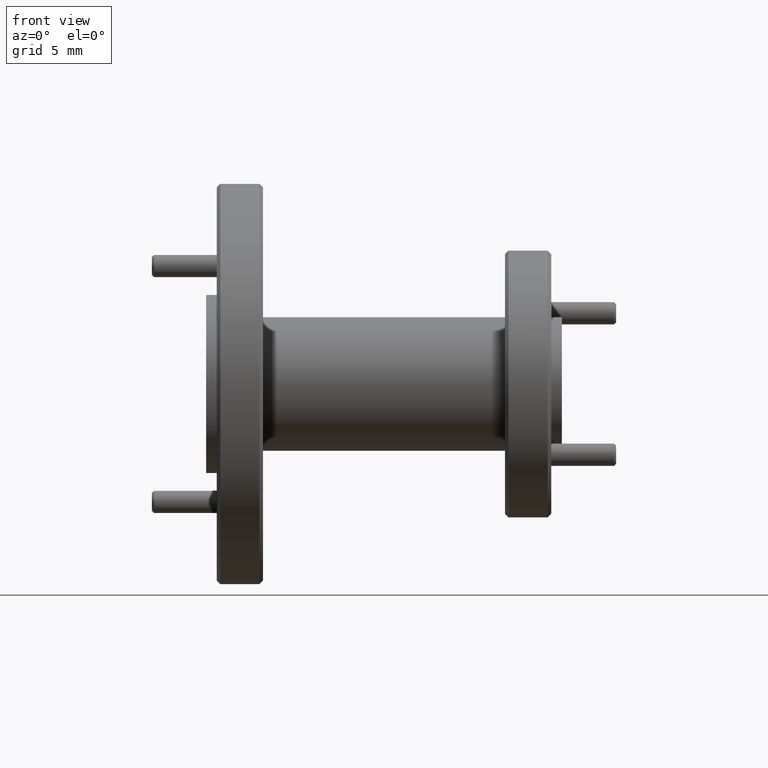
[diagram: clean part render]
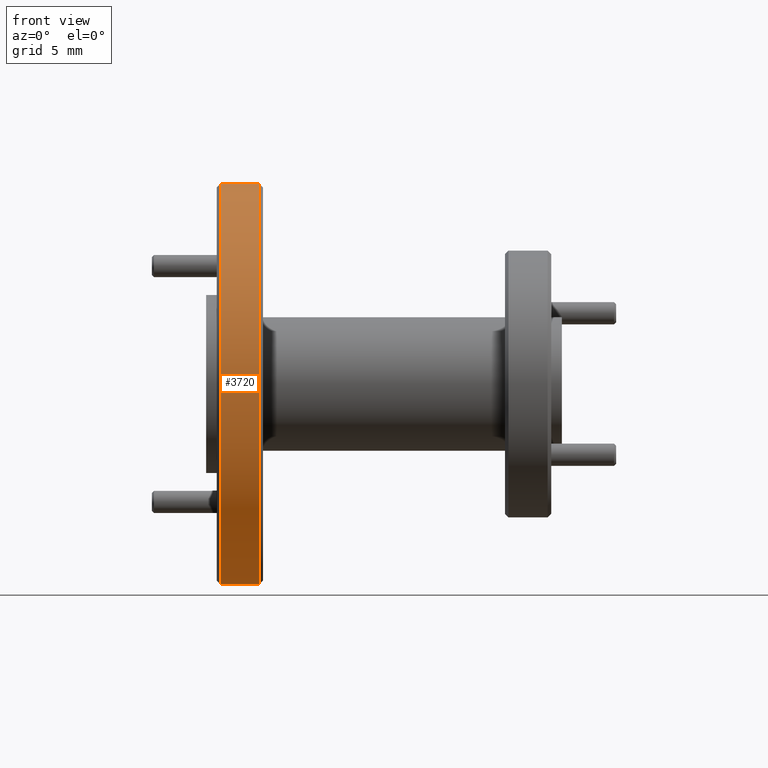
[diagram: same view with one face highlighted and labeled with its STEP entity id]
A machine part, front view. The second image highlights one B-rep face of the part: STEP entity #3720.
In plain terms, the highlighted cylindrical surface (partial cylindrical patch) has radius 14.2875 mm, axis along (-1, 0, -0).
Its self-contained STEP definition (entity closure, byte-faithful):
#4 = VERTEX_POINT ( 'NONE', #1412 ) ;
#124 = VERTEX_POINT ( 'NONE', #1897 ) ;
#209 = CYLINDRICAL_SURFACE ( 'NONE', #3404, 0.5625000000000001100 ) ;
#321 = DIRECTION ( 'NONE',  ( 0.0000000000000000000, 0.0000000000000000000, -1.000000000000000000 ) ) ;
#402 = LINE ( 'NONE', #2764, #1964 ) ;
#403 = ORIENTED_EDGE ( 'NONE', *, *, #3184, .T. ) ;
#456 = DIRECTION ( 'NONE',  ( -1.000000000000000000, 1.214504284265894100E-046, -1.479334085402692200E-046 ) ) ;
#643 = ORIENTED_EDGE ( 'NONE', *, *, #2354, .F. ) ;
#653 = DIRECTION ( 'NONE',  ( 0.0000000000000000000, 0.0000000000000000000, 1.000000000000000000 ) ) ;
#913 = VERTEX_POINT ( 'NONE', #3522 ) ;
#928 = CARTESIAN_POINT ( 'NONE',  ( -2.360299588133232700, 0.7127532445995203900, 0.5185281580648326600 ) ) ;
#1004 = VERTEX_POINT ( 'NONE', #1058 ) ;
#1058 = CARTESIAN_POINT ( 'NONE',  ( -2.250299588133233300, 0.7127532445995205000, -0.04397184193516739300 ) ) ;
#1096 = EDGE_LOOP ( 'NONE', ( #643, #403, #3600, #3331 ) ) ;
#1285 = FACE_OUTER_BOUND ( 'NONE', #1096, .T. ) ;
#1370 = CARTESIAN_POINT ( 'NONE',  ( -2.250299588133233300, 0.7127532445995203900, 0.5185281580648326600 ) ) ;
#1389 = DIRECTION ( 'NONE',  ( 0.0000000000000000000, 0.0000000000000000000, 1.000000000000000000 ) ) ;
#1412 = CARTESIAN_POINT ( 'NONE',  ( -2.250299588133233300, 0.7127532445995203900, 1.081028158064832700 ) ) ;
#1486 = CARTESIAN_POINT ( 'NONE',  ( -2.400299588133232700, 0.7127532445995205000, -0.04397184193516739300 ) ) ;
#1547 = DIRECTION ( 'NONE',  ( 1.000000000000000000, -1.214504284265894100E-046, 1.479334085402692200E-046 ) ) ;
#1749 = AXIS2_PLACEMENT_3D ( 'NONE', #1370, #456, #1389 ) ;
#1897 = CARTESIAN_POINT ( 'NONE',  ( -2.360299588133232700, 0.7127532445995203900, 1.081028158064832700 ) ) ;
#1964 = VECTOR ( 'NONE', #2800, 39.37007874015748100 ) ;
#2110 = CIRCLE ( 'NONE', #2740, 0.5625000000000000000 ) ;
#2251 = LINE ( 'NONE', #1486, #3251 ) ;
#2354 = EDGE_CURVE ( 'NONE', #1004, #913, #2251, .T. ) ;
#2374 = CIRCLE ( 'NONE', #1749, 0.5625000000000001100 ) ;
#2672 = DIRECTION ( 'NONE',  ( -1.000000000000000000, 1.214504284265894100E-046, -1.479334085402692200E-046 ) ) ;
#2740 = AXIS2_PLACEMENT_3D ( 'NONE', #928, #1547, #321 ) ;
#2764 = CARTESIAN_POINT ( 'NONE',  ( -2.400299588133232700, 0.7127532445995203900, 1.081028158064832700 ) ) ;
#2800 = DIRECTION ( 'NONE',  ( -1.000000000000000000, 1.214504284265894100E-046, -1.479334085402692200E-046 ) ) ;
#2864 = EDGE_CURVE ( 'NONE', #4, #124, #402, .T. ) ;
#2958 = EDGE_CURVE ( 'NONE', #124, #913, #2110, .T. ) ;
#3184 = EDGE_CURVE ( 'NONE', #1004, #4, #2374, .T. ) ;
#3186 = DIRECTION ( 'NONE',  ( -1.000000000000000000, 1.214504284265894100E-046, -1.479334085402692200E-046 ) ) ;
#3251 = VECTOR ( 'NONE', #2672, 39.37007874015748100 ) ;
#3331 = ORIENTED_EDGE ( 'NONE', *, *, #2958, .T. ) ;
#3404 = AXIS2_PLACEMENT_3D ( 'NONE', #3728, #3186, #653 ) ;
#3522 = CARTESIAN_POINT ( 'NONE',  ( -2.360299588133232700, 0.7127532445995205000, -0.04397184193516739300 ) ) ;
#3600 = ORIENTED_EDGE ( 'NONE', *, *, #2864, .T. ) ;
#3720 = ADVANCED_FACE ( 'NONE', ( #1285 ), #209, .T. ) ;
#3728 = CARTESIAN_POINT ( 'NONE',  ( -2.400299588133232700, 0.7127532445995203900, 0.5185281580648326600 ) ) ;